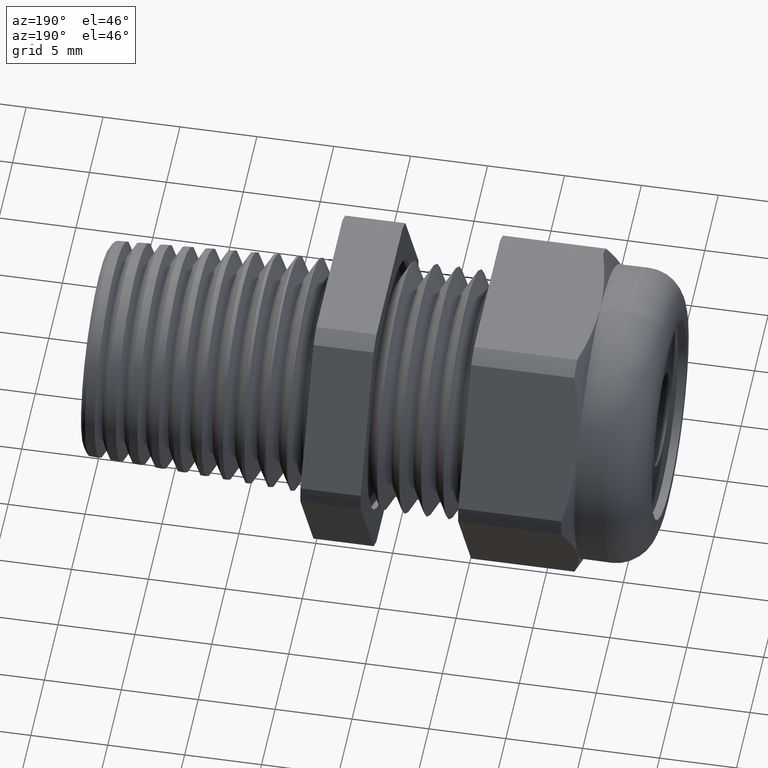
[diagram: clean part render]
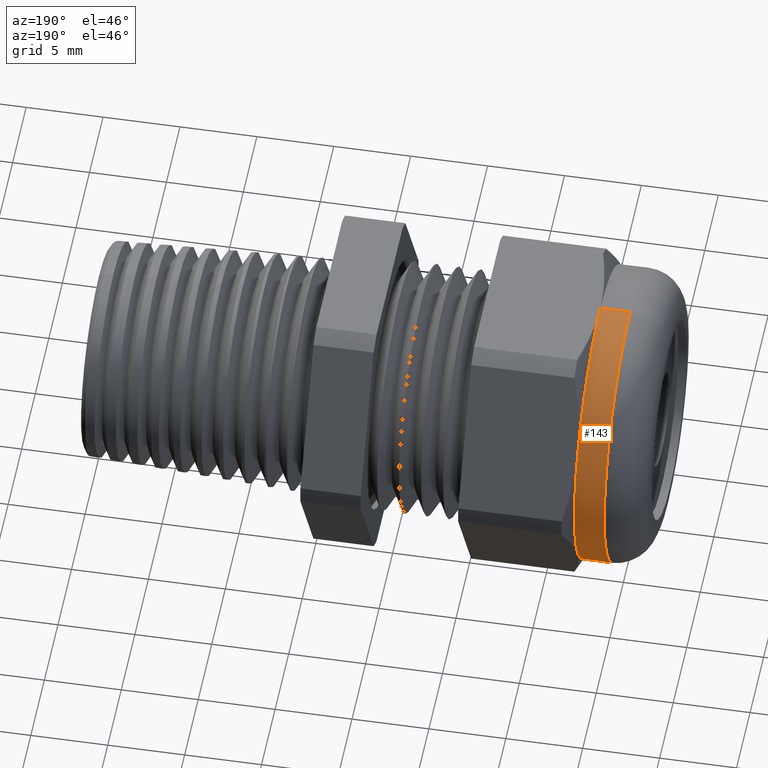
[diagram: same view with one face highlighted and labeled with its STEP entity id]
A machine part, auxiliary view. The second image highlights one B-rep face of the part: STEP entity #143.
In plain terms, the highlighted cylindrical surface (partial cylindrical patch) has radius 9.525 mm, axis along (-1, -0, -0).
Its self-contained STEP definition (entity closure, byte-faithful):
#3 = EDGE_LOOP ( 'NONE', ( #138, #20, #38, #34, #40, #33 ) ) ;
#18 = EDGE_CURVE ( 'NONE', #71, #4141, #1985, .T. ) ;
#20 = ORIENTED_EDGE ( 'NONE', *, *, #18, .T. ) ;
#30 = EDGE_CURVE ( 'NONE', #66, #101, #2020, .T. ) ;
#32 = EDGE_CURVE ( 'NONE', #66, #41, #2003, .T. ) ;
#33 = ORIENTED_EDGE ( 'NONE', *, *, #141, .T. ) ;
#34 = ORIENTED_EDGE ( 'NONE', *, *, #30, .F. ) ;
#38 = ORIENTED_EDGE ( 'NONE', *, *, #4139, .T. ) ;
#40 = ORIENTED_EDGE ( 'NONE', *, *, #32, .T. ) ;
#41 = VERTEX_POINT ( 'NONE', #2027 ) ;
#59 = EDGE_CURVE ( 'NONE', #60, #71, #2052, .T. ) ;
#60 = VERTEX_POINT ( 'NONE', #2046 ) ;
#66 = VERTEX_POINT ( 'NONE', #2072 ) ;
#71 = VERTEX_POINT ( 'NONE', #2063 ) ;
#101 = VERTEX_POINT ( 'NONE', #2114 ) ;
#138 = ORIENTED_EDGE ( 'NONE', *, *, #59, .T. ) ;
#141 = EDGE_CURVE ( 'NONE', #41, #60, #2175, .T. ) ;
#143 = ADVANCED_FACE ( 'NONE', ( #2183 ), #1976, .T. ) ;
#1774 = CARTESIAN_POINT ( 'NONE',  ( -0.7700000000000000200, 4.592273826833912300E-017, -0.3749999999999998300 ) ) ;
#1776 = DIRECTION ( 'NONE',  ( 0.0000000000000000000, 0.0000000000000000000, -1.000000000000000000 ) ) ;
#1777 = DIRECTION ( 'NONE',  ( 1.000000000000000000, 0.0000000000000000000, 0.0000000000000000000 ) ) ;
#1778 = CARTESIAN_POINT ( 'NONE',  ( -0.7700000000000000200, 0.0000000000000000000, 0.0000000000000000000 ) ) ;
#1779 = AXIS2_PLACEMENT_3D ( 'NONE', #1778, #1777, #1776 ) ;
#1780 = CIRCLE ( 'NONE', #1779, 0.3749999999999998300 ) ;
#1873 = CARTESIAN_POINT ( 'NONE',  ( -0.7238591030180623300, 0.0000000000000000000, 0.0000000000000000000 ) ) ;
#1878 = DIRECTION ( 'NONE',  ( -1.000000000000000000, -0.0000000000000000000, -0.0000000000000000000 ) ) ;
#1879 = DIRECTION ( 'NONE',  ( 0.0000000000000000000, 0.0000000000000000000, 1.000000000000000000 ) ) ;
#1975 = AXIS2_PLACEMENT_3D ( 'NONE', #1873, #1878, #1879 ) ;
#1976 = CYLINDRICAL_SURFACE ( 'NONE', #1975, 0.3749999999999998300 ) ;
#1978 = DIRECTION ( 'NONE',  ( -1.000000000000000000, -0.0000000000000000000, -0.0000000000000000000 ) ) ;
#1979 = VECTOR ( 'NONE', #1978, 39.37007874015748100 ) ;
#1982 = CARTESIAN_POINT ( 'NONE',  ( -0.7238591030180623300, 4.592273826833912300E-017, -0.3749999999999998300 ) ) ;
#1985 = LINE ( 'NONE', #1982, #1979 ) ;
#1990 = DIRECTION ( 'NONE',  ( 0.0000000000000000000, 0.0000000000000000000, 1.000000000000000000 ) ) ;
#1994 = DIRECTION ( 'NONE',  ( -1.000000000000000000, -0.0000000000000000000, -0.0000000000000000000 ) ) ;
#1995 = CARTESIAN_POINT ( 'NONE',  ( -0.6937499999999999800, 0.0000000000000000000, 0.0000000000000000000 ) ) ;
#2002 = AXIS2_PLACEMENT_3D ( 'NONE', #1995, #1994, #1990 ) ;
#2003 = CIRCLE ( 'NONE', #2002, 0.3749999999999998900 ) ;
#2020 = LINE ( 'NONE', #2025, #2029 ) ;
#2024 = DIRECTION ( 'NONE',  ( -1.000000000000000000, -0.0000000000000000000, -0.0000000000000000000 ) ) ;
#2025 = CARTESIAN_POINT ( 'NONE',  ( -0.7238591030180623300, 0.0000000000000000000, 0.3749999999999998300 ) ) ;
#2027 = CARTESIAN_POINT ( 'NONE',  ( -0.6937499999999999800, 0.3247595264191644500, 0.1874999999999999700 ) ) ;
#2029 = VECTOR ( 'NONE', #2024, 39.37007874015748100 ) ;
#2034 = DIRECTION ( 'NONE',  ( 0.0000000000000000000, 0.0000000000000000000, 1.000000000000000000 ) ) ;
#2038 = DIRECTION ( 'NONE',  ( -1.000000000000000000, -0.0000000000000000000, -0.0000000000000000000 ) ) ;
#2045 = CARTESIAN_POINT ( 'NONE',  ( -0.6937499999999999800, 0.0000000000000000000, 0.0000000000000000000 ) ) ;
#2046 = CARTESIAN_POINT ( 'NONE',  ( -0.6937499999999999800, 0.3247595264191646100, -0.1874999999999997800 ) ) ;
#2051 = AXIS2_PLACEMENT_3D ( 'NONE', #2045, #2038, #2034 ) ;
#2052 = CIRCLE ( 'NONE', #2051, 0.3749999999999998900 ) ;
#2063 = CARTESIAN_POINT ( 'NONE',  ( -0.6937499999999999800, 0.0000000000000000000, -0.3749999999999999400 ) ) ;
#2072 = CARTESIAN_POINT ( 'NONE',  ( -0.6937499999999999800, 0.0000000000000000000, 0.3749999999999999400 ) ) ;
#2114 = CARTESIAN_POINT ( 'NONE',  ( -0.7700000000000000200, 0.0000000000000000000, 0.3749999999999998300 ) ) ;
#2172 = CARTESIAN_POINT ( 'NONE',  ( -0.6937499999999999800, 0.0000000000000000000, 0.0000000000000000000 ) ) ;
#2173 = DIRECTION ( 'NONE',  ( 0.0000000000000000000, 0.0000000000000000000, 1.000000000000000000 ) ) ;
#2175 = CIRCLE ( 'NONE', #2177, 0.3749999999999998900 ) ;
#2176 = DIRECTION ( 'NONE',  ( -1.000000000000000000, -0.0000000000000000000, -0.0000000000000000000 ) ) ;
#2177 = AXIS2_PLACEMENT_3D ( 'NONE', #2172, #2176, #2173 ) ;
#2183 = FACE_OUTER_BOUND ( 'NONE', #3, .T. ) ;
#4139 = EDGE_CURVE ( 'NONE', #4141, #101, #1780, .T. ) ;
#4141 = VERTEX_POINT ( 'NONE', #1774 ) ;